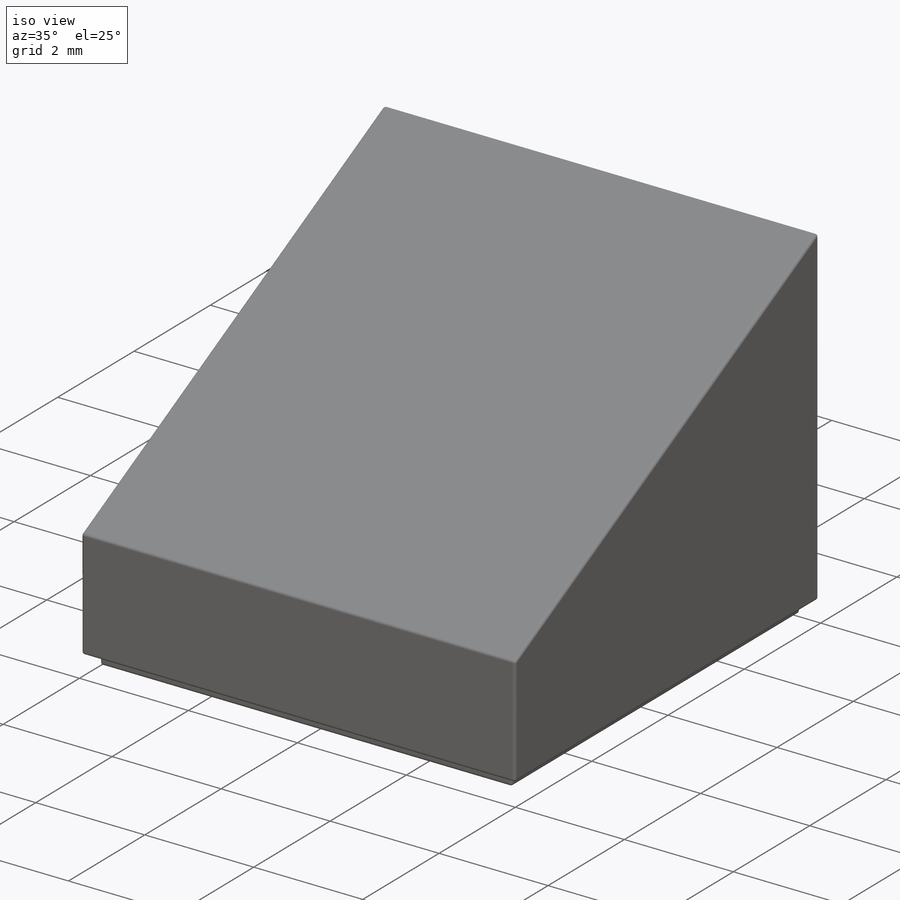
[diagram: iso view]
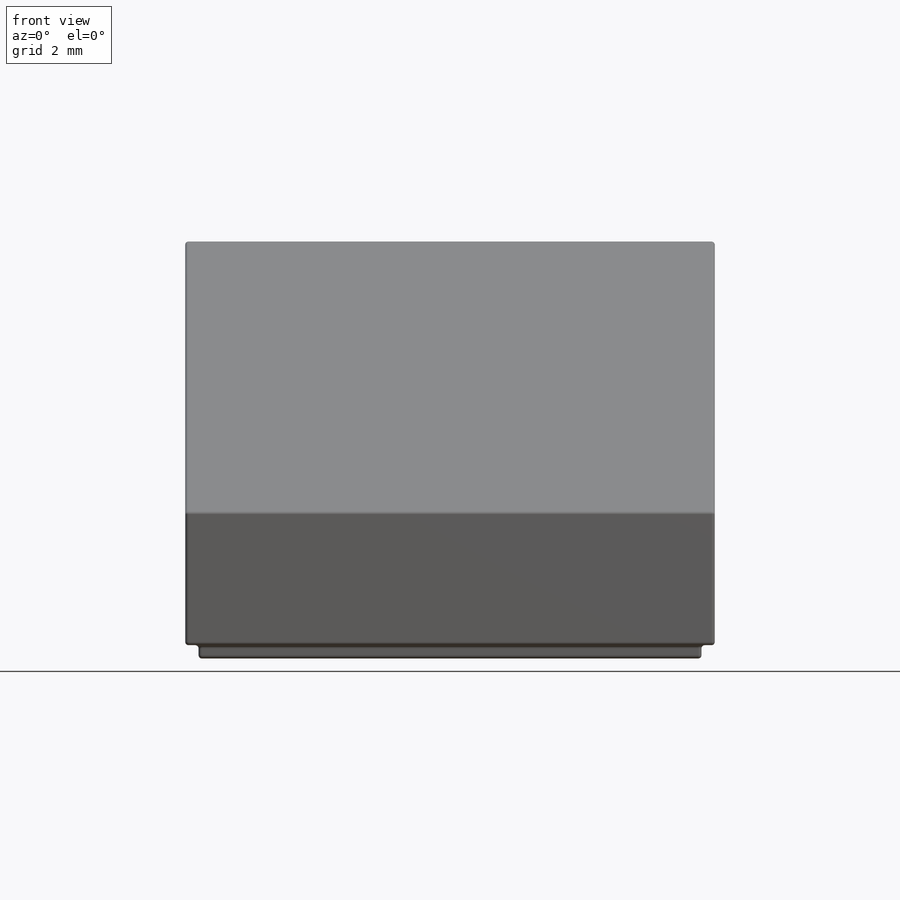
[diagram: front view]
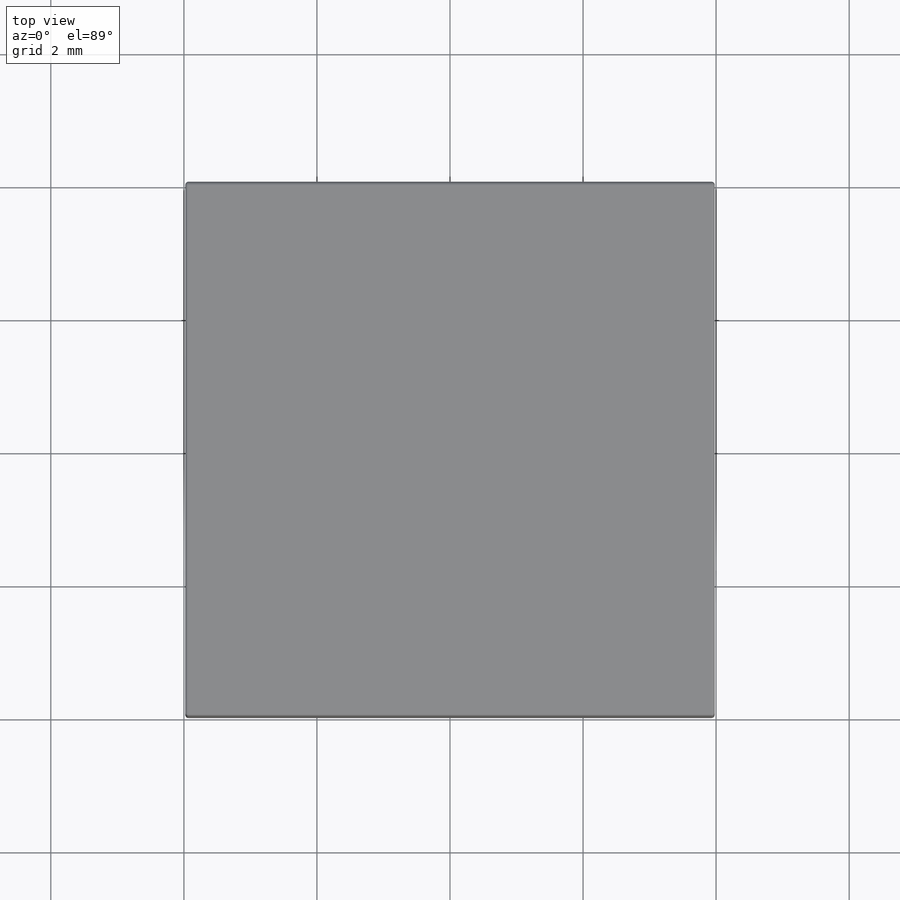
[diagram: top view]
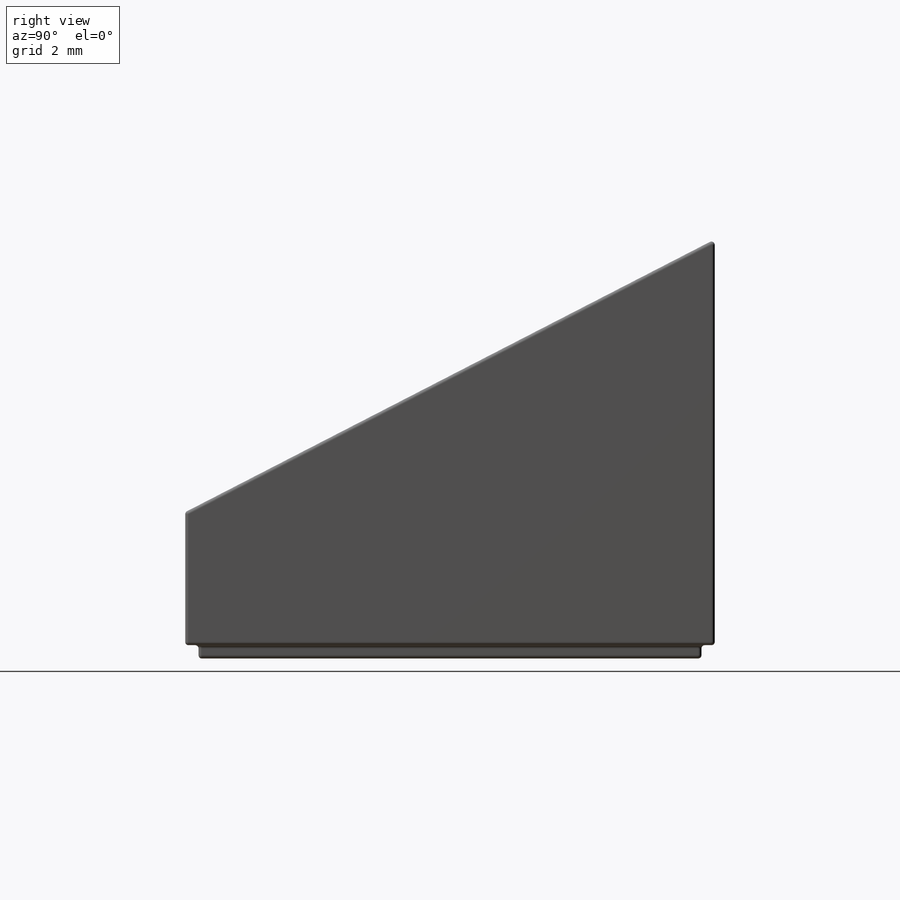
[diagram: right view]
SOLIDWORKS PART (.sldprt)
format: sldprt  version: not decoded by parser v0  size: 337,920 bytes
history: native  units: mm
features: sketch x4, cut_extrude x3, material x1, extrude x1, shell x1, fillet x1 (+14 scaffold rows collapsed)
feature tree (25):
  scaffold x14  (default folders/planes/origin — collapsed)
  material  "Smoked Clear Plastic"
  sketch  "Sketch1"  dims[D1=7.96mm]
  extrude  "Extrude1"  Depth=6.3mm
  sketch  "Sketch2"  dims[D1=2.2mm]
  cut_extrude  "Extrude2"  [1 undecoded]
  shell  "Shell1"  Thickness=1.55mm
  sketch  "Sketch5"  dims[c1.D1=~5.523881mm c2.D1=~178.872089deg c3.D1=0.14mm]
  cut_extrude  "Extrude4"  [1 undecoded]
  sketch  "Sketch6"  dims[D1=0.2mm]
  cut_extrude  "Extrude5"  Depth=0.2mm
  fillet  "Fillet1"  Radius=0.05mm
decode coverage: 8 of 10 modeling features carry decoded parameters
note: ~ marks probable driven/reference dimensions
note: 2 parameter values undecoded
note: suppression state not decoded; provenance and decode notes live in map.json
